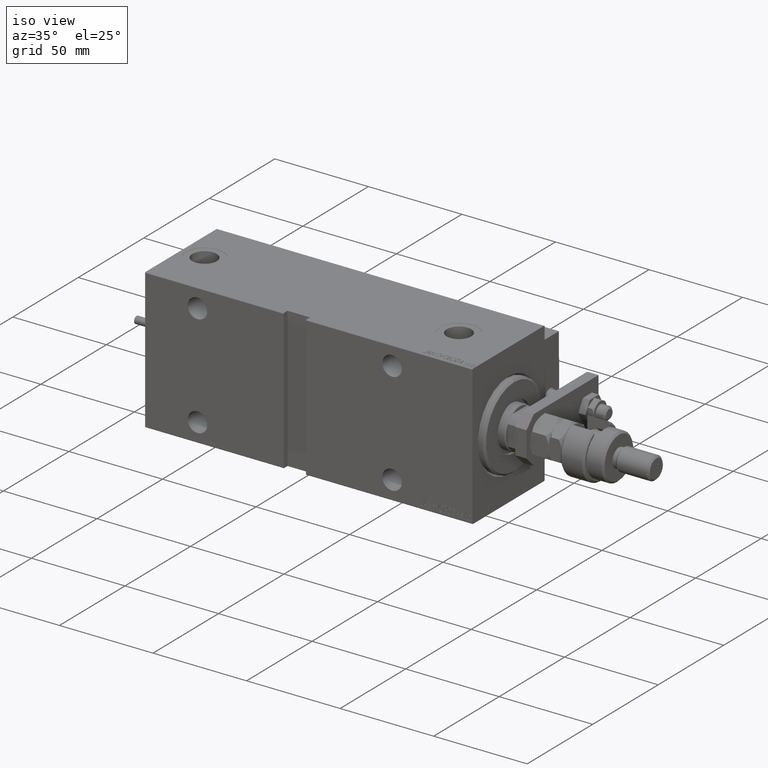
[diagram: clean part render]
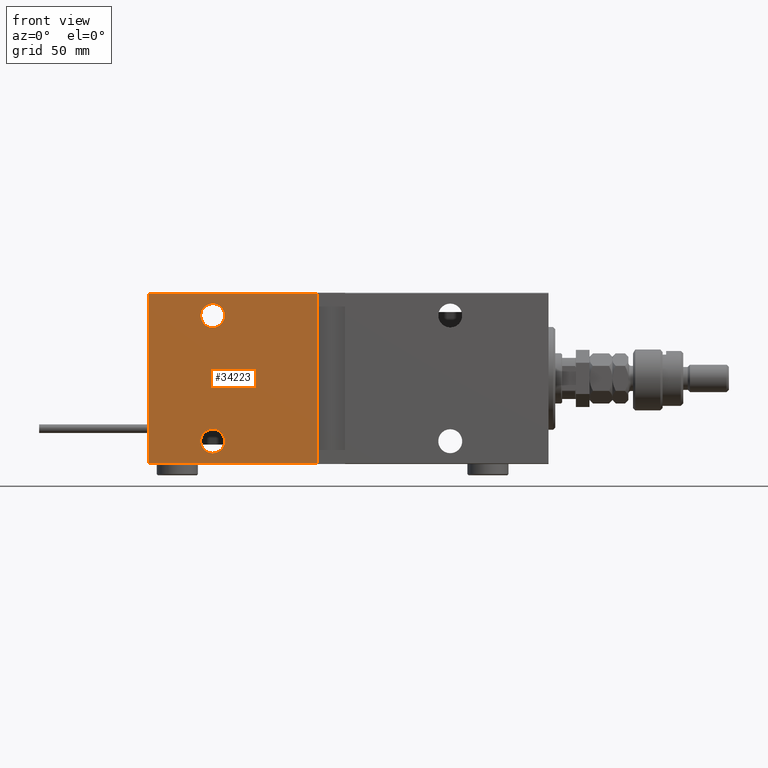
[diagram: tour spotlight — one face highlighted and labeled with its STEP entity id]
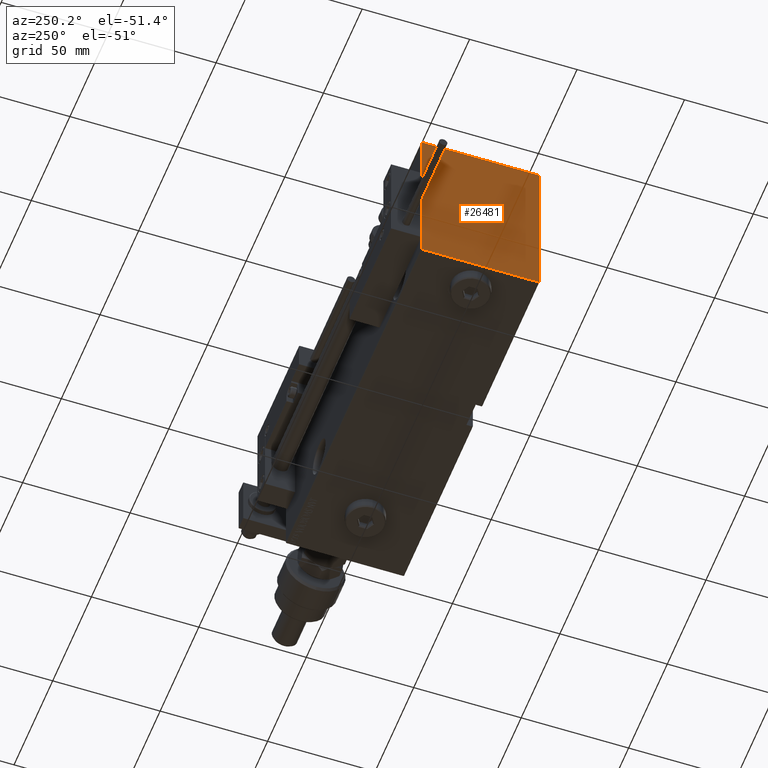
[diagram: tour spotlight — one face highlighted and labeled with its STEP entity id]
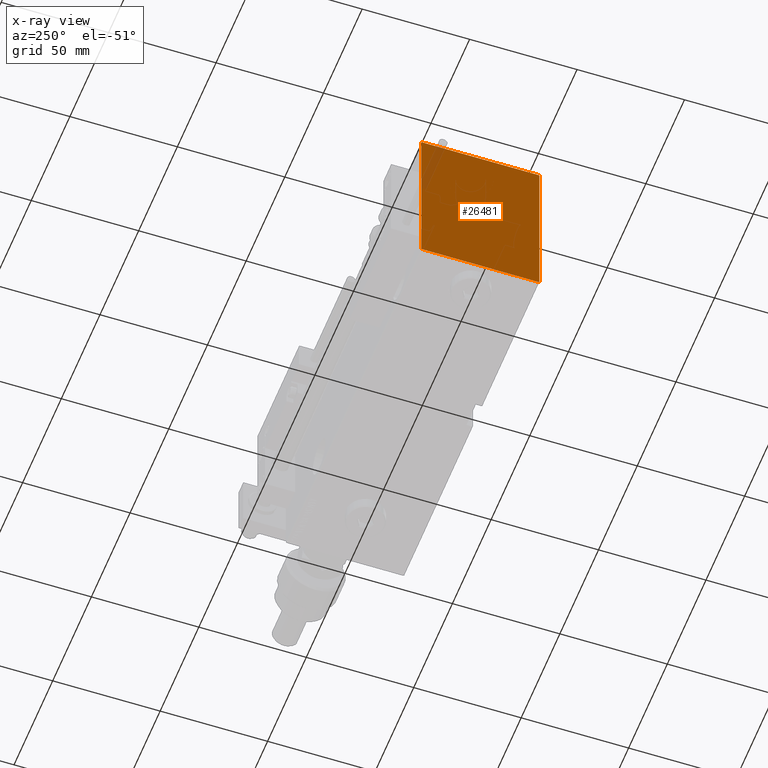
[diagram: x-ray of the same camera — body ghosted, this tour face saturated]
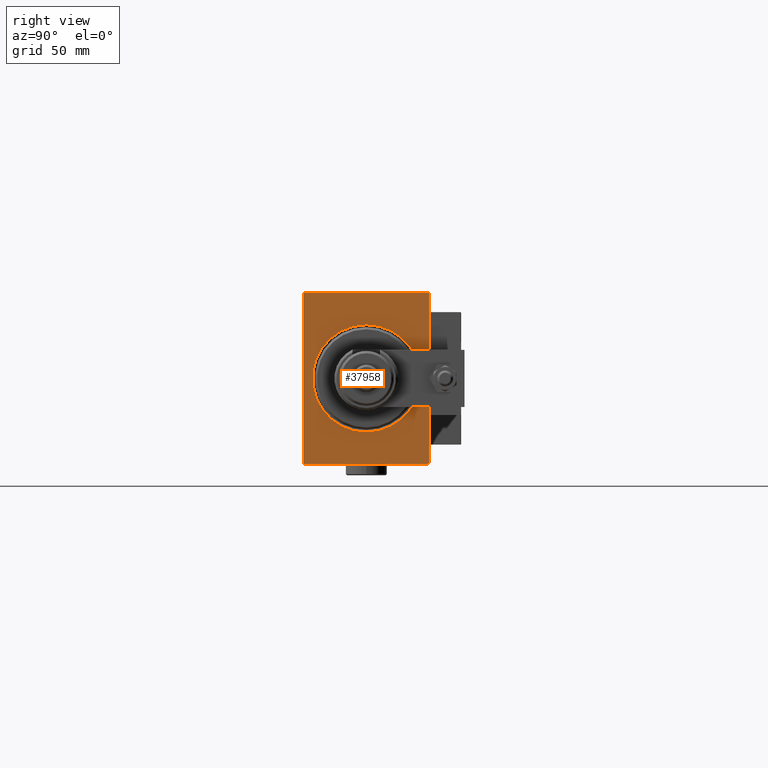
[diagram: tour spotlight — one face highlighted and labeled with its STEP entity id]
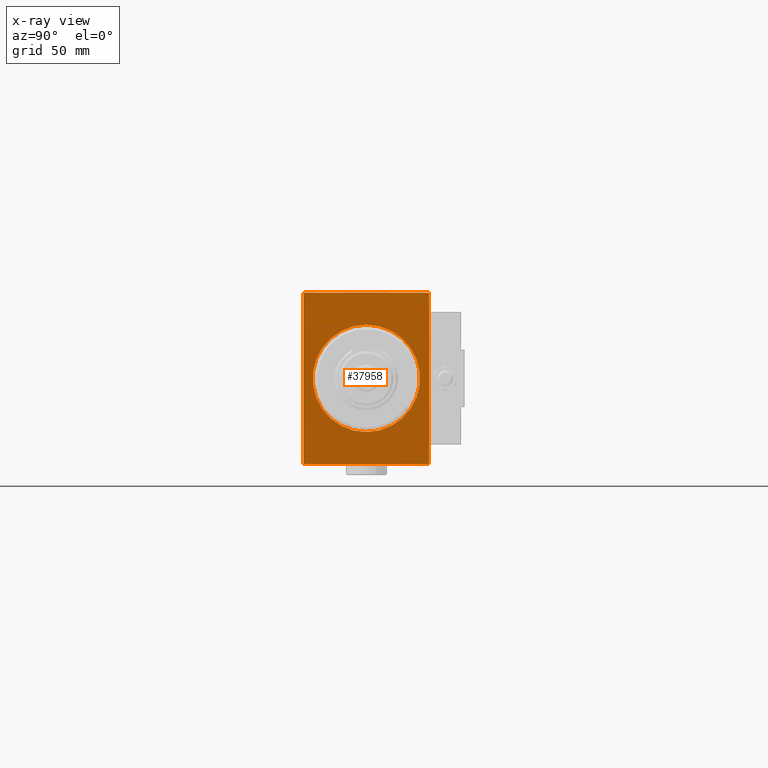
[diagram: x-ray of the same camera — body ghosted, this tour face saturated]
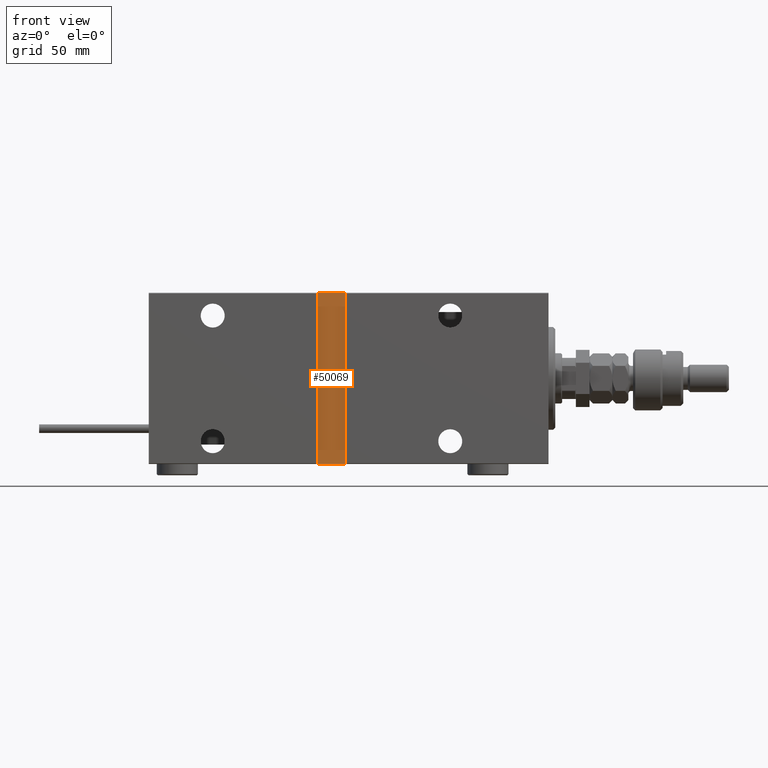
[diagram: tour spotlight — one face highlighted and labeled with its STEP entity id]
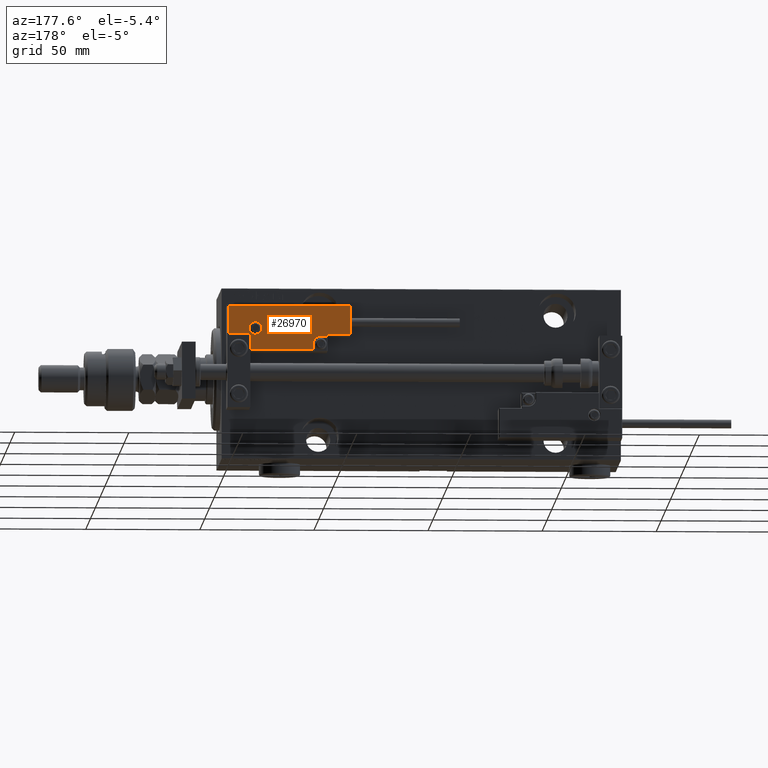
[diagram: tour spotlight — one face highlighted and labeled with its STEP entity id]
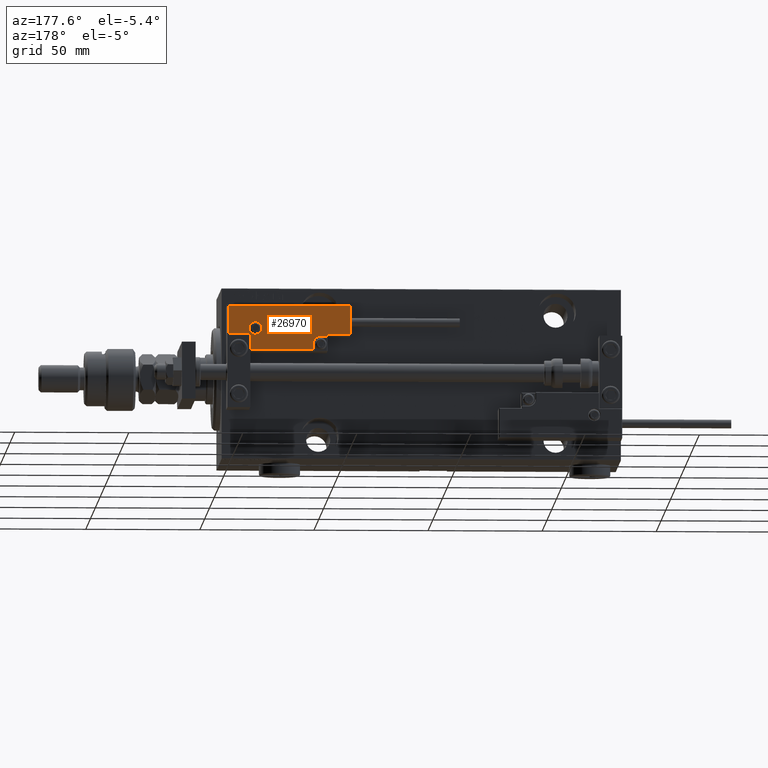
[diagram: tour spotlight — one face highlighted and labeled with its STEP entity id]
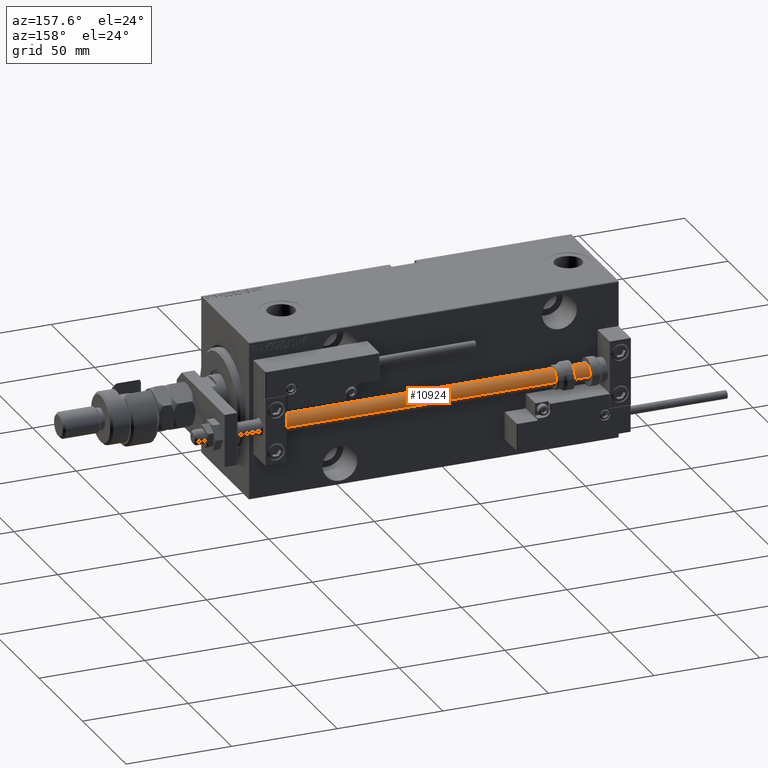
[diagram: tour spotlight — one face highlighted and labeled with its STEP entity id]
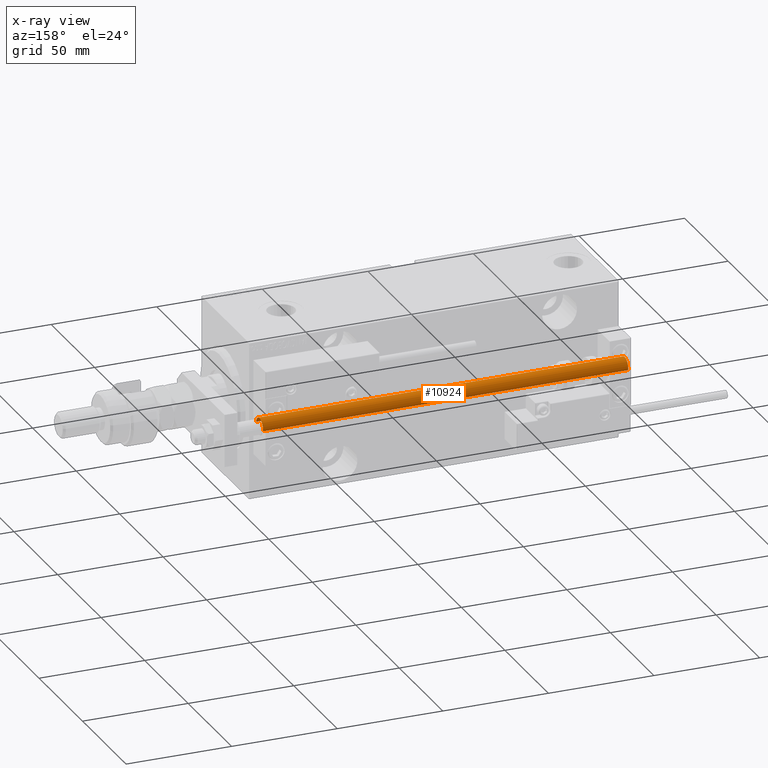
[diagram: x-ray of the same camera — body ghosted, this tour face saturated]
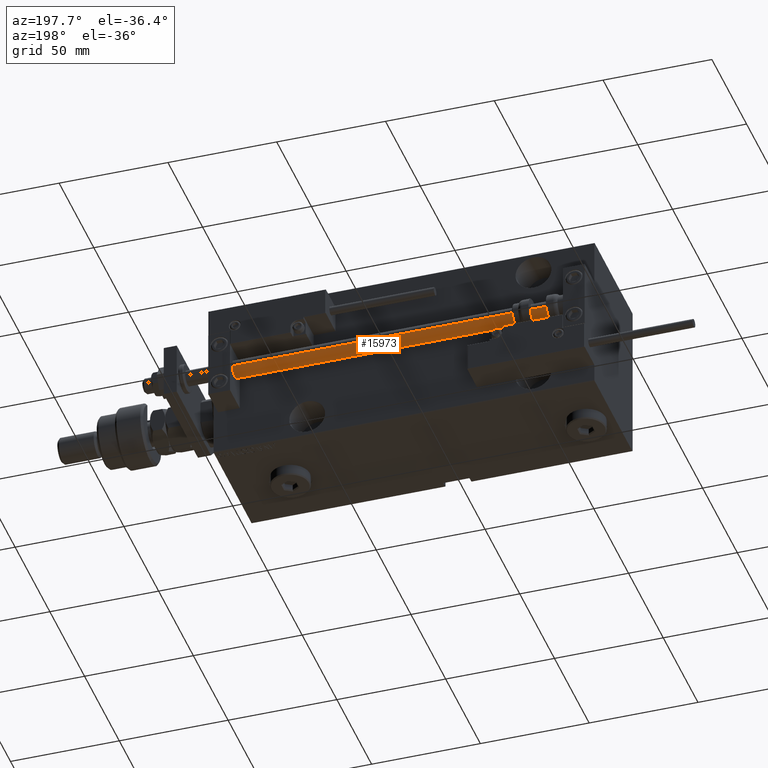
[diagram: tour spotlight — one face highlighted and labeled with its STEP entity id]
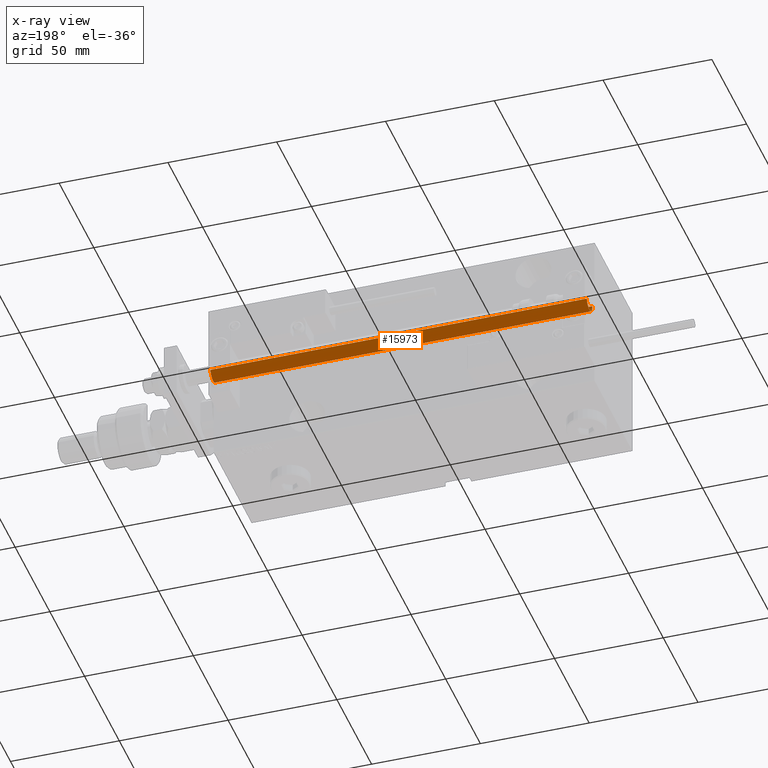
[diagram: x-ray of the same camera — body ghosted, this tour face saturated]
A machine part: a face-by-face anatomy tour. The part has 1431 B-rep faces; the first image is the clean iso view, then the 8 largest visible faces are spotlighted one at a time (largest first), each with its STEP entity span.

Face 1 — front view, entity #34223. In plain terms, the highlighted planar face has unit normal (-0, 1, -0).
Definition (entity closure, byte-faithful):
#80 = DIRECTION ( 'NONE',  ( 1.850371707708591851E-16, 9.251858538542959255E-17, -1.000000000000000000 ) ) ;
#308 = VERTEX_POINT ( 'NONE', #36185 ) ;
#686 = CARTESIAN_POINT ( 'NONE',  ( 100.9999999999999716, 27.50000000000000355, -37.20000000000003837 ) ) ;
#813 = EDGE_CURVE ( 'NONE', #23560, #28124, #19154, .T. ) ;
#1255 = CARTESIAN_POINT ( 'NONE',  ( 147.0000000000000000, 27.49999999999999645, 27.50000000000000000 ) ) ;
#1452 = DIRECTION ( 'NONE',  ( 0.000000000000000000, 0.000000000000000000, -1.000000000000000000 ) ) ;
#1621 = ORIENTED_EDGE ( 'NONE', *, *, #21572, .T. ) ;
#1869 = EDGE_LOOP ( 'NONE', ( #8675, #1621 ) ) ;
#2173 = CARTESIAN_POINT ( 'NONE',  ( 175.0000000000000000, 27.49999999999999645, 37.20000000000006679 ) ) ;
#2440 = DIRECTION ( 'NONE',  ( 0.000000000000000000, -1.000000000000000000, -9.251858538542970348E-17 ) ) ;
#2970 = LINE ( 'NONE', #33026, #51856 ) ;
#3123 = DIRECTION ( 'NONE',  ( 0.000000000000000000, 0.000000000000000000, -1.000000000000000000 ) ) ;
#3921 = AXIS2_PLACEMENT_3D ( 'NONE', #27599, #2440, #30899 ) ;
#4529 = CIRCLE ( 'NONE', #52665, 5.250000000000004441 ) ;
#4703 = ORIENTED_EDGE ( 'NONE', *, *, #44559, .T. ) ;
#5151 = EDGE_CURVE ( 'NONE', #308, #21426, #42210, .T. ) ;
#5358 = DIRECTION ( 'NONE',  ( 0.000000000000000000, 0.000000000000000000, -1.000000000000000000 ) ) ;
#5478 = CARTESIAN_POINT ( 'NONE',  ( 147.0000000000000000, 27.49999999999999645, 22.24999999999999645 ) ) ;
#5559 = DIRECTION ( 'NONE',  ( 0.000000000000000000, -1.000000000000000000, -9.251858538542970348E-17 ) ) ;
#6216 = CIRCLE ( 'NONE', #14963, 5.250000000000000888 ) ;
#6761 = VECTOR ( 'NONE', #49193, 1000.000000000000000 ) ;
#8675 = ORIENTED_EDGE ( 'NONE', *, *, #22258, .T. ) ;
#8853 = DIRECTION ( 'NONE',  ( -1.000000000000000000, 0.000000000000000000, 0.000000000000000000 ) ) ;
#10662 = PLANE ( 'NONE',  #3921 ) ;
#11047 = DIRECTION ( 'NONE',  ( 0.000000000000000000, 0.000000000000000000, -1.000000000000000000 ) ) ;
#12396 = AXIS2_PLACEMENT_3D ( 'NONE', #36220, #15693, #11047 ) ;
#12406 = CARTESIAN_POINT ( 'NONE',  ( 175.0000000000000000, 27.50000000000000355, -37.20000000000003837 ) ) ;
#14963 = AXIS2_PLACEMENT_3D ( 'NONE', #26348, #5559, #1452 ) ;
#15693 = DIRECTION ( 'NONE',  ( 0.000000000000000000, -1.000000000000000000, -9.251858538542970348E-17 ) ) ;
#16247 = ORIENTED_EDGE ( 'NONE', *, *, #32163, .T. ) ;
#17941 = DIRECTION ( 'NONE',  ( 0.000000000000000000, -1.000000000000000000, -9.251858538542970348E-17 ) ) ;
#18763 = EDGE_LOOP ( 'NONE', ( #24793, #4703, #51286, #16247 ) ) ;
#19154 = LINE ( 'NONE', #53292, #6761 ) ;
#20703 = CARTESIAN_POINT ( 'NONE',  ( 146.9999999999999716, 27.50000000000000355, -22.25000000000000355 ) ) ;
#21426 = VERTEX_POINT ( 'NONE', #686 ) ;
#21572 = EDGE_CURVE ( 'NONE', #51560, #46874, #49870, .T. ) ;
#22258 = EDGE_CURVE ( 'NONE', #46874, #51560, #6216, .T. ) ;
#23246 = VERTEX_POINT ( 'NONE', #48274 ) ;
#23560 = VERTEX_POINT ( 'NONE', #49479 ) ;
#24530 = EDGE_CURVE ( 'NONE', #23246, #30312, #29855, .T. ) ;
#24793 = ORIENTED_EDGE ( 'NONE', *, *, #813, .F. ) ;
#25468 = VECTOR ( 'NONE', #8853, 1000.000000000000000 ) ;
#26348 = CARTESIAN_POINT ( 'NONE',  ( 146.9999999999999716, 27.50000000000000355, -27.50000000000000711 ) ) ;
#27186 = AXIS2_PLACEMENT_3D ( 'NONE', #46042, #45507, #3123 ) ;
#27599 = CARTESIAN_POINT ( 'NONE',  ( 175.0000000000000000, 27.50000000000000355, -37.50000000000000711 ) ) ;
#28124 = VERTEX_POINT ( 'NONE', #2173 ) ;
#29855 = CIRCLE ( 'NONE', #12396, 5.250000000000004441 ) ;
#30312 = VERTEX_POINT ( 'NONE', #5478 ) ;
#30899 = DIRECTION ( 'NONE',  ( 0.000000000000000000, 9.251858538542970348E-17, -1.000000000000000000 ) ) ;
#32163 = EDGE_CURVE ( 'NONE', #308, #28124, #2970, .T. ) ;
#32501 = CARTESIAN_POINT ( 'NONE',  ( 146.9999999999999716, 27.50000000000000355, -32.75000000000000711 ) ) ;
#33026 = CARTESIAN_POINT ( 'NONE',  ( 175.0000000000000000, 27.49999999999999645, 37.20000000000006679 ) ) ;
#33200 = LINE ( 'NONE', #12406, #25468 ) ;
#33978 = ORIENTED_EDGE ( 'NONE', *, *, #49178, .T. ) ;
#34223 = ADVANCED_FACE ( 'NONE', ( #40197, #35014, #48104 ), #10662, .F. ) ;
#35014 = FACE_BOUND ( 'NONE', #42911, .T. ) ;
#35263 = ORIENTED_EDGE ( 'NONE', *, *, #24530, .T. ) ;
#36084 = DIRECTION ( 'NONE',  ( 1.000000000000000000, 0.000000000000000000, 0.000000000000000000 ) ) ;
#36185 = CARTESIAN_POINT ( 'NONE',  ( 100.9999999999999716, 27.49999999999999645, 37.20000000000007390 ) ) ;
#36220 = CARTESIAN_POINT ( 'NONE',  ( 147.0000000000000000, 27.49999999999999645, 27.50000000000000000 ) ) ;
#39085 = VECTOR ( 'NONE', #80, 1000.000000000000000 ) ;
#40197 = FACE_BOUND ( 'NONE', #1869, .T. ) ;
#42210 = LINE ( 'NONE', #45768, #39085 ) ;
#42911 = EDGE_LOOP ( 'NONE', ( #35263, #33978 ) ) ;
#44559 = EDGE_CURVE ( 'NONE', #23560, #21426, #33200, .T. ) ;
#45507 = DIRECTION ( 'NONE',  ( 0.000000000000000000, -1.000000000000000000, -9.251858538542970348E-17 ) ) ;
#45768 = CARTESIAN_POINT ( 'NONE',  ( 100.9999999999999716, 27.50000000000000355, -37.50000000000008527 ) ) ;
#46042 = CARTESIAN_POINT ( 'NONE',  ( 146.9999999999999716, 27.50000000000000355, -27.50000000000000711 ) ) ;
#46874 = VERTEX_POINT ( 'NONE', #20703 ) ;
#48104 = FACE_OUTER_BOUND ( 'NONE', #18763, .T. ) ;
#48274 = CARTESIAN_POINT ( 'NONE',  ( 147.0000000000000000, 27.49999999999999645, 32.75000000000000000 ) ) ;
#49178 = EDGE_CURVE ( 'NONE', #30312, #23246, #4529, .T. ) ;
#49193 = DIRECTION ( 'NONE',  ( 0.000000000000000000, -9.251858538542970348E-17, 1.000000000000000000 ) ) ;
#49479 = CARTESIAN_POINT ( 'NONE',  ( 175.0000000000000000, 27.50000000000000355, -37.20000000000003837 ) ) ;
#49870 = CIRCLE ( 'NONE', #27186, 5.250000000000000888 ) ;
#51286 = ORIENTED_EDGE ( 'NONE', *, *, #5151, .F. ) ;
#51560 = VERTEX_POINT ( 'NONE', #32501 ) ;
#51856 = VECTOR ( 'NONE', #36084, 1000.000000000000000 ) ;
#52665 = AXIS2_PLACEMENT_3D ( 'NONE', #1255, #17941, #5358 ) ;
#53292 = CARTESIAN_POINT ( 'NONE',  ( 175.0000000000000000, 27.50000000000000355, -37.50000000000000711 ) ) ;

Face 2 — auxiliary view, entity #26481. An x-ray twin of the same camera follows (body ghosted, this face saturated) — the face is partly hidden behind the body. In plain terms, the highlighted planar face has unit normal (-1, 0, 0).
Definition (entity closure, byte-faithful):
#558 = CARTESIAN_POINT ( 'NONE',  ( 175.0000000000000000, 27.20000000000005613, 37.50000000000000711 ) ) ;
#749 = EDGE_CURVE ( 'NONE', #3616, #29125, #47322, .T. ) ;
#765 = DIRECTION ( 'NONE',  ( 0.000000000000000000, -0.7071067811865843211, -0.7071067811865108244 ) ) ;
#813 = EDGE_CURVE ( 'NONE', #23560, #28124, #19154, .T. ) ;
#1155 = CARTESIAN_POINT ( 'NONE',  ( 175.0000000000000000, 27.20000000000003837, -37.50000000000000711 ) ) ;
#1222 = CARTESIAN_POINT ( 'NONE',  ( 175.0000000000000000, -27.50000000000000000, 37.20000000000005258 ) ) ;
#1934 = DIRECTION ( 'NONE',  ( 0.000000000000000000, 1.000000000000000000, 0.000000000000000000 ) ) ;
#2173 = CARTESIAN_POINT ( 'NONE',  ( 175.0000000000000000, 27.49999999999999645, 37.20000000000006679 ) ) ;
#3616 = VERTEX_POINT ( 'NONE', #25723 ) ;
#4180 = LINE ( 'NONE', #13182, #14704 ) ;
#5026 = VECTOR ( 'NONE', #43676, 1000.000000000000000 ) ;
#5533 = VERTEX_POINT ( 'NONE', #558 ) ;
#6044 = CARTESIAN_POINT ( 'NONE',  ( 175.0000000000000000, -27.50000000000000000, -37.50000000000000711 ) ) ;
#6531 = DIRECTION ( 'NONE',  ( 1.000000000000000000, 0.000000000000000000, 0.000000000000000000 ) ) ;
#6761 = VECTOR ( 'NONE', #49193, 1000.000000000000000 ) ;
#8141 = ORIENTED_EDGE ( 'NONE', *, *, #34445, .T. ) ;
#8701 = DIRECTION ( 'NONE',  ( -0.000000000000000000, 0.7071067811865149322, -0.7071067811865802133 ) ) ;
#10425 = ORIENTED_EDGE ( 'NONE', *, *, #12694, .T. ) ;
#10631 = LINE ( 'NONE', #36065, #21115 ) ;
#11183 = EDGE_CURVE ( 'NONE', #29125, #23560, #39836, .T. ) ;
#11772 = VECTOR ( 'NONE', #8701, 999.9999999999998863 ) ;
#12694 = EDGE_CURVE ( 'NONE', #28124, #5533, #4180, .T. ) ;
#13182 = CARTESIAN_POINT ( 'NONE',  ( 175.0000000000000000, 32.35000000000002984, 32.35000000000002984 ) ) ;
#14704 = VECTOR ( 'NONE', #53923, 1000.000000000000114 ) ;
#16537 = ORIENTED_EDGE ( 'NONE', *, *, #45890, .T. ) ;
#17768 = EDGE_CURVE ( 'NONE', #48819, #20547, #33602, .T. ) ;
#18290 = FACE_OUTER_BOUND ( 'NONE', #23806, .T. ) ;
#19098 = DIRECTION ( 'NONE',  ( 0.000000000000000000, 0.000000000000000000, -1.000000000000000000 ) ) ;
#19154 = LINE ( 'NONE', #53292, #6761 ) ;
#20547 = VERTEX_POINT ( 'NONE', #1222 ) ;
#21115 = VECTOR ( 'NONE', #19098, 1000.000000000000000 ) ;
#21824 = ORIENTED_EDGE ( 'NONE', *, *, #17768, .T. ) ;
#23198 = DIRECTION ( 'NONE',  ( 0.000000000000000000, 0.000000000000000000, -1.000000000000000000 ) ) ;
#23560 = VERTEX_POINT ( 'NONE', #49479 ) ;
#23806 = EDGE_LOOP ( 'NONE', ( #32353, #53454, #24277, #10425, #53509, #21824, #16537, #8141 ) ) ;
#24277 = ORIENTED_EDGE ( 'NONE', *, *, #813, .T. ) ;
#25723 = CARTESIAN_POINT ( 'NONE',  ( 175.0000000000000000, -27.20000000000003482, -37.50000000000000711 ) ) ;
#26481 = ADVANCED_FACE ( 'NONE', ( #18290 ), #27310, .T. ) ;
#27310 = PLANE ( 'NONE',  #35221 ) ;
#28124 = VERTEX_POINT ( 'NONE', #2173 ) ;
#29125 = VERTEX_POINT ( 'NONE', #1155 ) ;
#30207 = CARTESIAN_POINT ( 'NONE',  ( 175.0000000000000000, -27.50000000000000000, -37.20000000000000995 ) ) ;
#32353 = ORIENTED_EDGE ( 'NONE', *, *, #749, .T. ) ;
#33602 = LINE ( 'NONE', #46447, #39261 ) ;
#34445 = EDGE_CURVE ( 'NONE', #39739, #3616, #52063, .T. ) ;
#35221 = AXIS2_PLACEMENT_3D ( 'NONE', #43999, #6531, #23198 ) ;
#35456 = CARTESIAN_POINT ( 'NONE',  ( 175.0000000000000000, 32.35000000000018616, -32.34999999999980247 ) ) ;
#36065 = CARTESIAN_POINT ( 'NONE',  ( 175.0000000000000000, -27.50000000000000000, 37.49999999999999289 ) ) ;
#37967 = CARTESIAN_POINT ( 'NONE',  ( 175.0000000000000000, -32.35000000000127329, -32.34999999999828191 ) ) ;
#39261 = VECTOR ( 'NONE', #765, 1000.000000000000000 ) ;
#39739 = VERTEX_POINT ( 'NONE', #30207 ) ;
#39836 = LINE ( 'NONE', #35456, #5026 ) ;
#39952 = VECTOR ( 'NONE', #1934, 1000.000000000000000 ) ;
#40649 = DIRECTION ( 'NONE',  ( 0.000000000000000000, -1.000000000000000000, -2.523234146875355998E-16 ) ) ;
#41320 = VECTOR ( 'NONE', #40649, 1000.000000000000000 ) ;
#42045 = CARTESIAN_POINT ( 'NONE',  ( 175.0000000000000000, -27.20000000000003126, 37.49999999999999289 ) ) ;
#43676 = DIRECTION ( 'NONE',  ( -0.000000000000000000, 0.7071067811865434649, 0.7071067811865516806 ) ) ;
#43999 = CARTESIAN_POINT ( 'NONE',  ( 175.0000000000000000, 0.000000000000000000, 0.000000000000000000 ) ) ;
#45890 = EDGE_CURVE ( 'NONE', #20547, #39739, #10631, .T. ) ;
#46447 = CARTESIAN_POINT ( 'NONE',  ( 175.0000000000000000, -32.34999999999859455, 32.35000000000196252 ) ) ;
#47322 = LINE ( 'NONE', #6044, #39952 ) ;
#48081 = EDGE_CURVE ( 'NONE', #5533, #48819, #48295, .T. ) ;
#48295 = LINE ( 'NONE', #52663, #41320 ) ;
#48819 = VERTEX_POINT ( 'NONE', #42045 ) ;
#49193 = DIRECTION ( 'NONE',  ( 0.000000000000000000, -9.251858538542970348E-17, 1.000000000000000000 ) ) ;
#49479 = CARTESIAN_POINT ( 'NONE',  ( 175.0000000000000000, 27.50000000000000355, -37.20000000000003837 ) ) ;
#52063 = LINE ( 'NONE', #37967, #11772 ) ;
#52663 = CARTESIAN_POINT ( 'NONE',  ( 175.0000000000000000, 27.49999999999999645, 37.50000000000000711 ) ) ;
#53292 = CARTESIAN_POINT ( 'NONE',  ( 175.0000000000000000, 27.50000000000000355, -37.50000000000000711 ) ) ;
#53454 = ORIENTED_EDGE ( 'NONE', *, *, #11183, .T. ) ;
#53509 = ORIENTED_EDGE ( 'NONE', *, *, #48081, .T. ) ;
#53923 = DIRECTION ( 'NONE',  ( -0.000000000000000000, -0.7071067811865474617, 0.7071067811865474617 ) ) ;

Face 3 — right view, entity #37958. An x-ray twin of the same camera follows (body ghosted, this face saturated) — the face is partly hidden behind the body. In plain terms, the highlighted planar face has unit normal (-1, 0, 0).
Definition (entity closure, byte-faithful):
#1514 = DIRECTION ( 'NONE',  ( -0.000000000000000000, -0.7071067811865149322, 0.7071067811865802133 ) ) ;
#2061 = CARTESIAN_POINT ( 'NONE',  ( 0.000000000000000000, -27.20000000000003482, -37.50000000000000711 ) ) ;
#2575 = DIRECTION ( 'NONE',  ( 0.000000000000000000, 0.000000000000000000, -1.000000000000000000 ) ) ;
#2689 = LINE ( 'NONE', #7602, #16401 ) ;
#2914 = EDGE_CURVE ( 'NONE', #37683, #4765, #21633, .T. ) ;
#3332 = CARTESIAN_POINT ( 'NONE',  ( 0.000000000000000000, -27.50000000000000000, 37.20000000000005258 ) ) ;
#3816 = ORIENTED_EDGE ( 'NONE', *, *, #12571, .T. ) ;
#4765 = VERTEX_POINT ( 'NONE', #38582 ) ;
#4822 = ORIENTED_EDGE ( 'NONE', *, *, #2914, .T. ) ;
#5238 = CARTESIAN_POINT ( 'NONE',  ( 0.000000000000000000, 27.20000000000005613, 37.50000000000000711 ) ) ;
#5580 = DIRECTION ( 'NONE',  ( 0.000000000000000000, 0.000000000000000000, -1.000000000000000000 ) ) ;
#5628 = ORIENTED_EDGE ( 'NONE', *, *, #24834, .T. ) ;
#5745 = LINE ( 'NONE', #22421, #12148 ) ;
#7579 = EDGE_CURVE ( 'NONE', #33075, #18016, #35556, .T. ) ;
#7602 = CARTESIAN_POINT ( 'NONE',  ( 0.000000000000000000, -27.50000000000000000, 37.49999999999999289 ) ) ;
#10512 = VERTEX_POINT ( 'NONE', #30512 ) ;
#10987 = EDGE_CURVE ( 'NONE', #32084, #10512, #2689, .T. ) ;
#10990 = DIRECTION ( 'NONE',  ( -0.000000000000000000, 0.7071067811865474617, -0.7071067811865474617 ) ) ;
#11324 = CARTESIAN_POINT ( 'NONE',  ( 0.000000000000000000, 0.000000000000000000, 0.000000000000000000 ) ) ;
#12148 = VECTOR ( 'NONE', #47852, 1000.000000000000000 ) ;
#12308 = DIRECTION ( 'NONE',  ( 0.000000000000000000, -9.251858538542970348E-17, 1.000000000000000000 ) ) ;
#12571 = EDGE_CURVE ( 'NONE', #4765, #37683, #38283, .T. ) ;
#13571 = ORIENTED_EDGE ( 'NONE', *, *, #49305, .F. ) ;
#14715 = VECTOR ( 'NONE', #12308, 1000.000000000000000 ) ;
#14775 = CARTESIAN_POINT ( 'NONE',  ( 0.000000000000000000, 27.50000000000000355, -37.20000000000003837 ) ) ;
#15118 = LINE ( 'NONE', #3332, #16771 ) ;
#16125 = VERTEX_POINT ( 'NONE', #34253 ) ;
#16324 = ORIENTED_EDGE ( 'NONE', *, *, #10987, .F. ) ;
#16401 = VECTOR ( 'NONE', #19369, 1000.000000000000000 ) ;
#16771 = VECTOR ( 'NONE', #24387, 1000.000000000000000 ) ;
#17658 = ORIENTED_EDGE ( 'NONE', *, *, #7579, .T. ) ;
#18016 = VERTEX_POINT ( 'NONE', #33731 ) ;
#19369 = DIRECTION ( 'NONE',  ( 0.000000000000000000, 0.000000000000000000, -1.000000000000000000 ) ) ;
#19986 = PLANE ( 'NONE',  #29539 ) ;
#21633 = CIRCLE ( 'NONE', #26024, 23.49999999999996092 ) ;
#22421 = CARTESIAN_POINT ( 'NONE',  ( 0.000000000000000000, 27.49999999999999645, 37.50000000000000711 ) ) ;
#22751 = EDGE_LOOP ( 'NONE', ( #30314, #52049, #30370, #17658, #13571, #39718, #16324, #5628 ) ) ;
#23117 = LINE ( 'NONE', #2061, #24787 ) ;
#23634 = DIRECTION ( 'NONE',  ( 1.000000000000000000, 0.000000000000000000, 0.000000000000000000 ) ) ;
#23831 = CARTESIAN_POINT ( 'NONE',  ( 0.000000000000000000, 0.000000000000000000, 0.000000000000000000 ) ) ;
#24206 = DIRECTION ( 'NONE',  ( 0.000000000000000000, 1.000000000000000000, 0.000000000000000000 ) ) ;
#24289 = EDGE_LOOP ( 'NONE', ( #3816, #4822 ) ) ;
#24387 = DIRECTION ( 'NONE',  ( -0.000000000000000000, 0.7071067811865843211, 0.7071067811865108244 ) ) ;
#24787 = VECTOR ( 'NONE', #1514, 999.9999999999998863 ) ;
#24834 = EDGE_CURVE ( 'NONE', #32084, #47743, #15118, .T. ) ;
#25540 = VECTOR ( 'NONE', #24206, 1000.000000000000000 ) ;
#26024 = AXIS2_PLACEMENT_3D ( 'NONE', #45292, #41454, #40659 ) ;
#26923 = AXIS2_PLACEMENT_3D ( 'NONE', #11324, #23634, #2575 ) ;
#27658 = FACE_BOUND ( 'NONE', #24289, .T. ) ;
#28310 = LINE ( 'NONE', #44996, #25540 ) ;
#29539 = AXIS2_PLACEMENT_3D ( 'NONE', #23831, #40255, #5580 ) ;
#30314 = ORIENTED_EDGE ( 'NONE', *, *, #40139, .F. ) ;
#30370 = ORIENTED_EDGE ( 'NONE', *, *, #38029, .F. ) ;
#30512 = CARTESIAN_POINT ( 'NONE',  ( 0.000000000000000000, -27.50000000000000000, -37.20000000000000995 ) ) ;
#32071 = VECTOR ( 'NONE', #32764, 1000.000000000000000 ) ;
#32084 = VERTEX_POINT ( 'NONE', #48891 ) ;
#32725 = VECTOR ( 'NONE', #10990, 1000.000000000000114 ) ;
#32764 = DIRECTION ( 'NONE',  ( 0.000000000000000000, -0.7071067811865434649, -0.7071067811865516806 ) ) ;
#33075 = VERTEX_POINT ( 'NONE', #43411 ) ;
#33731 = CARTESIAN_POINT ( 'NONE',  ( 0.000000000000000000, 27.20000000000003837, -37.50000000000000711 ) ) ;
#33858 = EDGE_CURVE ( 'NONE', #49881, #16125, #39455, .T. ) ;
#34253 = CARTESIAN_POINT ( 'NONE',  ( 0.000000000000000000, 27.49999999999999645, 37.20000000000006679 ) ) ;
#35345 = CARTESIAN_POINT ( 'NONE',  ( 0.000000000000000000, 27.20000000000005613, 37.50000000000000711 ) ) ;
#35460 = CARTESIAN_POINT ( 'NONE',  ( 0.000000000000000000, -27.20000000000003482, -37.50000000000000711 ) ) ;
#35556 = LINE ( 'NONE', #14775, #32071 ) ;
#37213 = LINE ( 'NONE', #42127, #14715 ) ;
#37683 = VERTEX_POINT ( 'NONE', #53448 ) ;
#37958 = ADVANCED_FACE ( 'NONE', ( #27658, #47422 ), #19986, .F. ) ;
#38029 = EDGE_CURVE ( 'NONE', #33075, #16125, #37213, .T. ) ;
#38283 = CIRCLE ( 'NONE', #26923, 23.49999999999996092 ) ;
#38582 = CARTESIAN_POINT ( 'NONE',  ( 0.000000000000000000, 0.000000000000000000, 23.49999999999996092 ) ) ;
#39455 = LINE ( 'NONE', #35345, #32725 ) ;
#39718 = ORIENTED_EDGE ( 'NONE', *, *, #53973, .T. ) ;
#40139 = EDGE_CURVE ( 'NONE', #49881, #47743, #5745, .T. ) ;
#40255 = DIRECTION ( 'NONE',  ( 1.000000000000000000, 0.000000000000000000, 0.000000000000000000 ) ) ;
#40659 = DIRECTION ( 'NONE',  ( 0.000000000000000000, 0.000000000000000000, -1.000000000000000000 ) ) ;
#41454 = DIRECTION ( 'NONE',  ( 1.000000000000000000, 0.000000000000000000, 0.000000000000000000 ) ) ;
#42127 = CARTESIAN_POINT ( 'NONE',  ( 0.000000000000000000, 27.50000000000000355, -37.50000000000000711 ) ) ;
#43411 = CARTESIAN_POINT ( 'NONE',  ( 0.000000000000000000, 27.50000000000000355, -37.20000000000003837 ) ) ;
#44996 = CARTESIAN_POINT ( 'NONE',  ( 0.000000000000000000, -27.50000000000000000, -37.50000000000000711 ) ) ;
#45292 = CARTESIAN_POINT ( 'NONE',  ( 0.000000000000000000, 0.000000000000000000, 0.000000000000000000 ) ) ;
#47009 = VERTEX_POINT ( 'NONE', #35460 ) ;
#47422 = FACE_OUTER_BOUND ( 'NONE', #22751, .T. ) ;
#47743 = VERTEX_POINT ( 'NONE', #52986 ) ;
#47852 = DIRECTION ( 'NONE',  ( 0.000000000000000000, -1.000000000000000000, -2.523234146875355998E-16 ) ) ;
#48891 = CARTESIAN_POINT ( 'NONE',  ( 0.000000000000000000, -27.50000000000000000, 37.20000000000005258 ) ) ;
#49305 = EDGE_CURVE ( 'NONE', #47009, #18016, #28310, .T. ) ;
#49881 = VERTEX_POINT ( 'NONE', #5238 ) ;
#52049 = ORIENTED_EDGE ( 'NONE', *, *, #33858, .T. ) ;
#52986 = CARTESIAN_POINT ( 'NONE',  ( 0.000000000000000000, -27.20000000000003126, 37.49999999999999289 ) ) ;
#53448 = CARTESIAN_POINT ( 'NONE',  ( 0.000000000000000000, 2.877919977996275587E-15, -23.49999999999996092 ) ) ;
#53973 = EDGE_CURVE ( 'NONE', #47009, #10512, #23117, .T. ) ;

Face 4 — front view, entity #50069. In plain terms, the highlighted planar face has unit normal (-0, 1, -0).
Definition (entity closure, byte-faithful):
#2325 = VECTOR ( 'NONE', #16704, 1000.000000000000000 ) ;
#2687 = ORIENTED_EDGE ( 'NONE', *, *, #3688, .T. ) ;
#2761 = DIRECTION ( 'NONE',  ( 0.000000000000000000, -1.000000000000000000, -9.251858538542959255E-17 ) ) ;
#3688 = EDGE_CURVE ( 'NONE', #24333, #50842, #37781, .T. ) ;
#4668 = EDGE_LOOP ( 'NONE', ( #2687, #51558, #34446, #50872 ) ) ;
#6871 = LINE ( 'NONE', #24337, #42725 ) ;
#10689 = VECTOR ( 'NONE', #12757, 1000.000000000000000 ) ;
#12757 = DIRECTION ( 'NONE',  ( 1.850371707708591851E-16, 9.251858538542959255E-17, -1.000000000000000000 ) ) ;
#13173 = DIRECTION ( 'NONE',  ( -1.000000000000000000, 0.000000000000000000, 0.000000000000000000 ) ) ;
#14251 = EDGE_CURVE ( 'NONE', #50842, #51908, #6871, .T. ) ;
#15500 = CARTESIAN_POINT ( 'NONE',  ( 100.9999999999999716, 24.49999999999999645, 37.50000000000000711 ) ) ;
#16704 = DIRECTION ( 'NONE',  ( 0.000000000000000000, -9.251858538542959255E-17, 1.000000000000000000 ) ) ;
#16792 = VECTOR ( 'NONE', #13173, 1000.000000000000000 ) ;
#19967 = DIRECTION ( 'NONE',  ( 1.000000000000000000, -0.000000000000000000, -0.000000000000000000 ) ) ;
#20242 = DIRECTION ( 'NONE',  ( 0.000000000000000000, 9.251858538542959255E-17, -1.000000000000000000 ) ) ;
#20690 = LINE ( 'NONE', #50221, #10689 ) ;
#20844 = LINE ( 'NONE', #37551, #16792 ) ;
#24333 = VERTEX_POINT ( 'NONE', #39248 ) ;
#24337 = CARTESIAN_POINT ( 'NONE',  ( 100.9999999999999716, 24.49999999999999645, 37.50000000000000711 ) ) ;
#25439 = VERTEX_POINT ( 'NONE', #43166 ) ;
#26034 = CARTESIAN_POINT ( 'NONE',  ( 88.99999999999997158, 24.49999999999999645, 37.50000000000000711 ) ) ;
#28188 = PLANE ( 'NONE',  #39539 ) ;
#34446 = ORIENTED_EDGE ( 'NONE', *, *, #45998, .T. ) ;
#37551 = CARTESIAN_POINT ( 'NONE',  ( 100.9999999999999716, 24.50000000000000355, -37.50000000000008527 ) ) ;
#37781 = LINE ( 'NONE', #45708, #2325 ) ;
#39248 = CARTESIAN_POINT ( 'NONE',  ( 88.99999999999997158, 24.50000000000000355, -37.50000000000008527 ) ) ;
#39539 = AXIS2_PLACEMENT_3D ( 'NONE', #41040, #2761, #20242 ) ;
#41040 = CARTESIAN_POINT ( 'NONE',  ( 0.000000000000000000, 24.50000000000000000, 2.165775976068010180E-15 ) ) ;
#42725 = VECTOR ( 'NONE', #19967, 1000.000000000000000 ) ;
#43166 = CARTESIAN_POINT ( 'NONE',  ( 100.9999999999999716, 24.50000000000000355, -37.50000000000000711 ) ) ;
#45708 = CARTESIAN_POINT ( 'NONE',  ( 88.99999999999997158, 24.50000000000000355, -37.50000000000008527 ) ) ;
#45998 = EDGE_CURVE ( 'NONE', #51908, #25439, #20690, .T. ) ;
#49853 = EDGE_CURVE ( 'NONE', #25439, #24333, #20844, .T. ) ;
#50069 = ADVANCED_FACE ( 'NONE', ( #53845 ), #28188, .F. ) ;
#50221 = CARTESIAN_POINT ( 'NONE',  ( 100.9999999999999716, 24.50000000000000355, -37.50000000000008527 ) ) ;
#50842 = VERTEX_POINT ( 'NONE', #26034 ) ;
#50872 = ORIENTED_EDGE ( 'NONE', *, *, #49853, .T. ) ;
#51558 = ORIENTED_EDGE ( 'NONE', *, *, #14251, .T. ) ;
#51908 = VERTEX_POINT ( 'NONE', #15500 ) ;
#53845 = FACE_OUTER_BOUND ( 'NONE', #4668, .T. ) ;

Face 5 — auxiliary view, entity #26970. In plain terms, the highlighted planar face has unit normal (-0, 1, 0).
Definition (entity closure, byte-faithful):
#206 = DIRECTION ( 'NONE',  ( 1.000000000000000000, 5.782411586589357639E-16, -0.000000000000000000 ) ) ;
#1174 = CARTESIAN_POINT ( 'NONE',  ( 16.69999999999999929, 6.300000000000003375, 14.00000000000000000 ) ) ;
#1189 = PLANE ( 'NONE',  #38618 ) ;
#2019 = DIRECTION ( 'NONE',  ( -0.000000000000000000, 0.000000000000000000, 1.000000000000000000 ) ) ;
#2035 = EDGE_CURVE ( 'NONE', #33357, #8772, #31372, .T. ) ;
#2076 = ORIENTED_EDGE ( 'NONE', *, *, #18767, .T. ) ;
#2808 = VECTOR ( 'NONE', #38408, 1000.000000000000000 ) ;
#3752 = DIRECTION ( 'NONE',  ( 1.000000000000000000, 0.000000000000000000, 0.000000000000000000 ) ) ;
#5514 = CARTESIAN_POINT ( 'NONE',  ( -17.59999999999994813, 9.800000000000004263, 14.00000000000000000 ) ) ;
#5529 = DIRECTION ( 'NONE',  ( 0.000000000000000000, 1.000000000000000000, -0.000000000000000000 ) ) ;
#5768 = DIRECTION ( 'NONE',  ( 0.000000000000000000, -0.000000000000000000, -1.000000000000000000 ) ) ;
#5943 = CARTESIAN_POINT ( 'NONE',  ( 27.00000000000006395, 7.300000000000007816, 14.00000000000000000 ) ) ;
#6352 = LINE ( 'NONE', #22196, #41845 ) ;
#6934 = VERTEX_POINT ( 'NONE', #28958 ) ;
#7339 = VERTEX_POINT ( 'NONE', #46917 ) ;
#7466 = VERTEX_POINT ( 'NONE', #52895 ) ;
#7477 = EDGE_CURVE ( 'NONE', #8772, #43070, #14020, .T. ) ;
#8376 = VERTEX_POINT ( 'NONE', #47582 ) ;
#8425 = CARTESIAN_POINT ( 'NONE',  ( 17.00000000000000000, 6.300000000000003375, 14.00000000000000000 ) ) ;
#8772 = VERTEX_POINT ( 'NONE', #16038 ) ;
#8964 = EDGE_CURVE ( 'NONE', #6934, #36080, #39541, .T. ) ;
#9321 = ORIENTED_EDGE ( 'NONE', *, *, #31041, .T. ) ;
#9396 = LINE ( 'NONE', #26088, #44855 ) ;
#9528 = DIRECTION ( 'NONE',  ( 9.912705577010318647E-16, 1.000000000000000000, 0.000000000000000000 ) ) ;
#10893 = ORIENTED_EDGE ( 'NONE', *, *, #19380, .T. ) ;
#12864 = CARTESIAN_POINT ( 'NONE',  ( 13.99999999999999822, 3.000000000000002665, 14.00000000000000000 ) ) ;
#12994 = AXIS2_PLACEMENT_3D ( 'NONE', #24801, #45859, #3752 ) ;
#13624 = LINE ( 'NONE', #46991, #36683 ) ;
#14020 = LINE ( 'NONE', #26599, #53857 ) ;
#14119 = EDGE_CURVE ( 'NONE', #28695, #50741, #54050, .T. ) ;
#14572 = CARTESIAN_POINT ( 'NONE',  ( -26.69999999999994600, 7.000000000000005329, 14.00000000000000000 ) ) ;
#14632 = EDGE_CURVE ( 'NONE', #50741, #28695, #40124, .T. ) ;
#15806 = ORIENTED_EDGE ( 'NONE', *, *, #8964, .T. ) ;
#16038 = CARTESIAN_POINT ( 'NONE',  ( 26.70000000000006324, 7.300000000000007816, 14.00000000000000000 ) ) ;
#16456 = AXIS2_PLACEMENT_3D ( 'NONE', #12864, #45423, #50054 ) ;
#16598 = ORIENTED_EDGE ( 'NONE', *, *, #26979, .T. ) ;
#17429 = CARTESIAN_POINT ( 'NONE',  ( 10.69999999999999929, 3.000000000000003109, 14.00000000000000000 ) ) ;
#17896 = CARTESIAN_POINT ( 'NONE',  ( 16.69999999999999929, 7.300000000000009592, 14.00000000000000000 ) ) ;
#18067 = ORIENTED_EDGE ( 'NONE', *, *, #14119, .T. ) ;
#18072 = VERTEX_POINT ( 'NONE', #1174 ) ;
#18153 = FACE_OUTER_BOUND ( 'NONE', #18981, .T. ) ;
#18183 = CARTESIAN_POINT ( 'NONE',  ( -11.99999999999994849, 9.800000000000004263, 14.00000000000000000 ) ) ;
#18326 = ORIENTED_EDGE ( 'NONE', *, *, #53422, .T. ) ;
#18402 = CARTESIAN_POINT ( 'NONE',  ( -26.69999999999994600, 7.300000000000005151, 14.00000000000000000 ) ) ;
#18588 = VECTOR ( 'NONE', #50185, 1000.000000000000000 ) ;
#18767 = EDGE_CURVE ( 'NONE', #18072, #33357, #13624, .T. ) ;
#18981 = EDGE_LOOP ( 'NONE', ( #16598, #15806, #51628, #36854, #10893, #2076, #46208, #23817, #44475, #18326, #9321 ) ) ;
#19380 = EDGE_CURVE ( 'NONE', #8376, #18072, #24295, .T. ) ;
#19789 = VECTOR ( 'NONE', #47716, 1000.000000000000000 ) ;
#21267 = CARTESIAN_POINT ( 'NONE',  ( 26.70000000000006324, 19.70000000000001705, 14.00000000000000000 ) ) ;
#21968 = DIRECTION ( 'NONE',  ( 1.000000000000000000, -1.734723475976815230E-16, 0.000000000000000000 ) ) ;
#22196 = CARTESIAN_POINT ( 'NONE',  ( 10.69999999999999929, 3.000000000000003109, 14.00000000000000000 ) ) ;
#22241 = CARTESIAN_POINT ( 'NONE',  ( -16.69999999999999218, 3.252606517456513302E-15, 14.00000000000000000 ) ) ;
#22525 = DIRECTION ( 'NONE',  ( 1.000000000000000000, 0.000000000000000000, 0.000000000000000000 ) ) ;
#23817 = ORIENTED_EDGE ( 'NONE', *, *, #7477, .T. ) ;
#24295 = LINE ( 'NONE', #8425, #48014 ) ;
#24722 = VERTEX_POINT ( 'NONE', #18402 ) ;
#24770 = LINE ( 'NONE', #45297, #18588 ) ;
#24801 = CARTESIAN_POINT ( 'NONE',  ( -14.79999999999994920, 9.800000000000004263, 14.00000000000000000 ) ) ;
#26088 = CARTESIAN_POINT ( 'NONE',  ( -16.99999999999999289, 7.300000000000003375, 14.00000000000000000 ) ) ;
#26599 = CARTESIAN_POINT ( 'NONE',  ( 26.70000000000006324, 20.00000000000001776, 14.00000000000000000 ) ) ;
#26970 = ADVANCED_FACE ( 'NONE', ( #51771, #18153 ), #1189, .T. ) ;
#26979 = EDGE_CURVE ( 'NONE', #7339, #6934, #42495, .T. ) ;
#27266 = DIRECTION ( 'NONE',  ( 1.000000000000000000, -1.734723475976796001E-16, 0.000000000000000000 ) ) ;
#27484 = CARTESIAN_POINT ( 'NONE',  ( 11.00000000000000000, 0.3000000000000032085, 14.00000000000000000 ) ) ;
#28695 = VERTEX_POINT ( 'NONE', #18183 ) ;
#28958 = CARTESIAN_POINT ( 'NONE',  ( -16.69999999999999218, 0.3000000000000032085, 14.00000000000000000 ) ) ;
#29537 = EDGE_CURVE ( 'NONE', #43070, #7466, #24770, .T. ) ;
#30729 = CARTESIAN_POINT ( 'NONE',  ( 0.000000000000000000, 0.000000000000000000, 14.00000000000000000 ) ) ;
#31041 = EDGE_CURVE ( 'NONE', #24722, #7339, #9396, .T. ) ;
#31372 = LINE ( 'NONE', #5943, #42583 ) ;
#32194 = CIRCLE ( 'NONE', #16456, 3.299999999999997158 ) ;
#33357 = VERTEX_POINT ( 'NONE', #17896 ) ;
#33664 = ORIENTED_EDGE ( 'NONE', *, *, #14632, .T. ) ;
#34933 = EDGE_CURVE ( 'NONE', #51367, #8376, #32194, .T. ) ;
#36080 = VERTEX_POINT ( 'NONE', #49186 ) ;
#36179 = VECTOR ( 'NONE', #53080, 1000.000000000000000 ) ;
#36683 = VECTOR ( 'NONE', #9528, 1000.000000000000000 ) ;
#36854 = ORIENTED_EDGE ( 'NONE', *, *, #34933, .T. ) ;
#38408 = DIRECTION ( 'NONE',  ( 0.000000000000000000, -1.000000000000000000, 0.000000000000000000 ) ) ;
#38618 = AXIS2_PLACEMENT_3D ( 'NONE', #30729, #2019, #22525 ) ;
#39094 = EDGE_CURVE ( 'NONE', #36080, #51367, #6352, .T. ) ;
#39541 = LINE ( 'NONE', #27484, #19789 ) ;
#39570 = EDGE_LOOP ( 'NONE', ( #18067, #33664 ) ) ;
#40124 = CIRCLE ( 'NONE', #12994, 2.800000000000000266 ) ;
#41845 = VECTOR ( 'NONE', #43274, 1000.000000000000000 ) ;
#42495 = LINE ( 'NONE', #22241, #2808 ) ;
#42583 = VECTOR ( 'NONE', #27266, 1000.000000000000000 ) ;
#43070 = VERTEX_POINT ( 'NONE', #21267 ) ;
#43274 = DIRECTION ( 'NONE',  ( -0.000000000000000000, 1.000000000000000000, -0.000000000000000000 ) ) ;
#44475 = ORIENTED_EDGE ( 'NONE', *, *, #29537, .T. ) ;
#44647 = LINE ( 'NONE', #14572, #36179 ) ;
#44855 = VECTOR ( 'NONE', #21968, 1000.000000000000000 ) ;
#45297 = CARTESIAN_POINT ( 'NONE',  ( -26.99999999999993605, 19.70000000000002061, 14.00000000000000000 ) ) ;
#45423 = DIRECTION ( 'NONE',  ( 0.000000000000000000, -0.000000000000000000, -1.000000000000000000 ) ) ;
#45859 = DIRECTION ( 'NONE',  ( 0.000000000000000000, -0.000000000000000000, -1.000000000000000000 ) ) ;
#46208 = ORIENTED_EDGE ( 'NONE', *, *, #2035, .T. ) ;
#46917 = CARTESIAN_POINT ( 'NONE',  ( -16.69999999999999218, 7.300000000000003375, 14.00000000000000000 ) ) ;
#46991 = CARTESIAN_POINT ( 'NONE',  ( 16.69999999999999929, 7.000000000000009770, 14.00000000000000000 ) ) ;
#47582 = CARTESIAN_POINT ( 'NONE',  ( 13.99999999999999822, 6.300000000000001599, 14.00000000000000000 ) ) ;
#47605 = CARTESIAN_POINT ( 'NONE',  ( -14.79999999999994920, 9.800000000000004263, 14.00000000000000000 ) ) ;
#47716 = DIRECTION ( 'NONE',  ( 1.000000000000000000, -0.000000000000000000, 0.000000000000000000 ) ) ;
#47944 = AXIS2_PLACEMENT_3D ( 'NONE', #47605, #5768, #52239 ) ;
#48014 = VECTOR ( 'NONE', #206, 1000.000000000000000 ) ;
#49186 = CARTESIAN_POINT ( 'NONE',  ( 10.69999999999999929, 0.3000000000000032085, 14.00000000000000000 ) ) ;
#50054 = DIRECTION ( 'NONE',  ( 1.000000000000000000, 0.000000000000000000, 0.000000000000000000 ) ) ;
#50185 = DIRECTION ( 'NONE',  ( -1.000000000000000000, 6.424901762877063495E-17, -0.000000000000000000 ) ) ;
#50741 = VERTEX_POINT ( 'NONE', #5514 ) ;
#51367 = VERTEX_POINT ( 'NONE', #17429 ) ;
#51628 = ORIENTED_EDGE ( 'NONE', *, *, #39094, .T. ) ;
#51771 = FACE_BOUND ( 'NONE', #39570, .T. ) ;
#52239 = DIRECTION ( 'NONE',  ( 1.000000000000000000, 0.000000000000000000, 0.000000000000000000 ) ) ;
#52895 = CARTESIAN_POINT ( 'NONE',  ( -26.69999999999993534, 19.70000000000002061, 14.00000000000000000 ) ) ;
#53080 = DIRECTION ( 'NONE',  ( -8.006416042969869188E-16, -1.000000000000000000, 0.000000000000000000 ) ) ;
#53422 = EDGE_CURVE ( 'NONE', #7466, #24722, #44647, .T. ) ;
#53857 = VECTOR ( 'NONE', #5529, 1000.000000000000000 ) ;
#54050 = CIRCLE ( 'NONE', #47944, 2.800000000000000266 ) ;

Face 6 — auxiliary view, entity #26970. In plain terms, the highlighted planar face has unit normal (0, 1, -0).
Definition (entity closure, byte-faithful):
#206 = DIRECTION ( 'NONE',  ( 1.000000000000000000, 5.782411586589357639E-16, -0.000000000000000000 ) ) ;
#1174 = CARTESIAN_POINT ( 'NONE',  ( 16.69999999999999929, 6.300000000000003375, 14.00000000000000000 ) ) ;
#1189 = PLANE ( 'NONE',  #38618 ) ;
#2019 = DIRECTION ( 'NONE',  ( -0.000000000000000000, 0.000000000000000000, 1.000000000000000000 ) ) ;
#2035 = EDGE_CURVE ( 'NONE', #33357, #8772, #31372, .T. ) ;
#2076 = ORIENTED_EDGE ( 'NONE', *, *, #18767, .T. ) ;
#2808 = VECTOR ( 'NONE', #38408, 1000.000000000000000 ) ;
#3752 = DIRECTION ( 'NONE',  ( 1.000000000000000000, 0.000000000000000000, 0.000000000000000000 ) ) ;
#5514 = CARTESIAN_POINT ( 'NONE',  ( -17.59999999999994813, 9.800000000000004263, 14.00000000000000000 ) ) ;
#5529 = DIRECTION ( 'NONE',  ( 0.000000000000000000, 1.000000000000000000, -0.000000000000000000 ) ) ;
#5768 = DIRECTION ( 'NONE',  ( 0.000000000000000000, -0.000000000000000000, -1.000000000000000000 ) ) ;
#5943 = CARTESIAN_POINT ( 'NONE',  ( 27.00000000000006395, 7.300000000000007816, 14.00000000000000000 ) ) ;
#6352 = LINE ( 'NONE', #22196, #41845 ) ;
#6934 = VERTEX_POINT ( 'NONE', #28958 ) ;
#7339 = VERTEX_POINT ( 'NONE', #46917 ) ;
#7466 = VERTEX_POINT ( 'NONE', #52895 ) ;
#7477 = EDGE_CURVE ( 'NONE', #8772, #43070, #14020, .T. ) ;
#8376 = VERTEX_POINT ( 'NONE', #47582 ) ;
#8425 = CARTESIAN_POINT ( 'NONE',  ( 17.00000000000000000, 6.300000000000003375, 14.00000000000000000 ) ) ;
#8772 = VERTEX_POINT ( 'NONE', #16038 ) ;
#8964 = EDGE_CURVE ( 'NONE', #6934, #36080, #39541, .T. ) ;
#9321 = ORIENTED_EDGE ( 'NONE', *, *, #31041, .T. ) ;
#9396 = LINE ( 'NONE', #26088, #44855 ) ;
#9528 = DIRECTION ( 'NONE',  ( 9.912705577010318647E-16, 1.000000000000000000, 0.000000000000000000 ) ) ;
#10893 = ORIENTED_EDGE ( 'NONE', *, *, #19380, .T. ) ;
#12864 = CARTESIAN_POINT ( 'NONE',  ( 13.99999999999999822, 3.000000000000002665, 14.00000000000000000 ) ) ;
#12994 = AXIS2_PLACEMENT_3D ( 'NONE', #24801, #45859, #3752 ) ;
#13624 = LINE ( 'NONE', #46991, #36683 ) ;
#14020 = LINE ( 'NONE', #26599, #53857 ) ;
#14119 = EDGE_CURVE ( 'NONE', #28695, #50741, #54050, .T. ) ;
#14572 = CARTESIAN_POINT ( 'NONE',  ( -26.69999999999994600, 7.000000000000005329, 14.00000000000000000 ) ) ;
#14632 = EDGE_CURVE ( 'NONE', #50741, #28695, #40124, .T. ) ;
#15806 = ORIENTED_EDGE ( 'NONE', *, *, #8964, .T. ) ;
#16038 = CARTESIAN_POINT ( 'NONE',  ( 26.70000000000006324, 7.300000000000007816, 14.00000000000000000 ) ) ;
#16456 = AXIS2_PLACEMENT_3D ( 'NONE', #12864, #45423, #50054 ) ;
#16598 = ORIENTED_EDGE ( 'NONE', *, *, #26979, .T. ) ;
#17429 = CARTESIAN_POINT ( 'NONE',  ( 10.69999999999999929, 3.000000000000003109, 14.00000000000000000 ) ) ;
#17896 = CARTESIAN_POINT ( 'NONE',  ( 16.69999999999999929, 7.300000000000009592, 14.00000000000000000 ) ) ;
#18067 = ORIENTED_EDGE ( 'NONE', *, *, #14119, .T. ) ;
#18072 = VERTEX_POINT ( 'NONE', #1174 ) ;
#18153 = FACE_OUTER_BOUND ( 'NONE', #18981, .T. ) ;
#18183 = CARTESIAN_POINT ( 'NONE',  ( -11.99999999999994849, 9.800000000000004263, 14.00000000000000000 ) ) ;
#18326 = ORIENTED_EDGE ( 'NONE', *, *, #53422, .T. ) ;
#18402 = CARTESIAN_POINT ( 'NONE',  ( -26.69999999999994600, 7.300000000000005151, 14.00000000000000000 ) ) ;
#18588 = VECTOR ( 'NONE', #50185, 1000.000000000000000 ) ;
#18767 = EDGE_CURVE ( 'NONE', #18072, #33357, #13624, .T. ) ;
#18981 = EDGE_LOOP ( 'NONE', ( #16598, #15806, #51628, #36854, #10893, #2076, #46208, #23817, #44475, #18326, #9321 ) ) ;
#19380 = EDGE_CURVE ( 'NONE', #8376, #18072, #24295, .T. ) ;
#19789 = VECTOR ( 'NONE', #47716, 1000.000000000000000 ) ;
#21267 = CARTESIAN_POINT ( 'NONE',  ( 26.70000000000006324, 19.70000000000001705, 14.00000000000000000 ) ) ;
#21968 = DIRECTION ( 'NONE',  ( 1.000000000000000000, -1.734723475976815230E-16, 0.000000000000000000 ) ) ;
#22196 = CARTESIAN_POINT ( 'NONE',  ( 10.69999999999999929, 3.000000000000003109, 14.00000000000000000 ) ) ;
#22241 = CARTESIAN_POINT ( 'NONE',  ( -16.69999999999999218, 3.252606517456513302E-15, 14.00000000000000000 ) ) ;
#22525 = DIRECTION ( 'NONE',  ( 1.000000000000000000, 0.000000000000000000, 0.000000000000000000 ) ) ;
#23817 = ORIENTED_EDGE ( 'NONE', *, *, #7477, .T. ) ;
#24295 = LINE ( 'NONE', #8425, #48014 ) ;
#24722 = VERTEX_POINT ( 'NONE', #18402 ) ;
#24770 = LINE ( 'NONE', #45297, #18588 ) ;
#24801 = CARTESIAN_POINT ( 'NONE',  ( -14.79999999999994920, 9.800000000000004263, 14.00000000000000000 ) ) ;
#26088 = CARTESIAN_POINT ( 'NONE',  ( -16.99999999999999289, 7.300000000000003375, 14.00000000000000000 ) ) ;
#26599 = CARTESIAN_POINT ( 'NONE',  ( 26.70000000000006324, 20.00000000000001776, 14.00000000000000000 ) ) ;
#26970 = ADVANCED_FACE ( 'NONE', ( #51771, #18153 ), #1189, .T. ) ;
#26979 = EDGE_CURVE ( 'NONE', #7339, #6934, #42495, .T. ) ;
#27266 = DIRECTION ( 'NONE',  ( 1.000000000000000000, -1.734723475976796001E-16, 0.000000000000000000 ) ) ;
#27484 = CARTESIAN_POINT ( 'NONE',  ( 11.00000000000000000, 0.3000000000000032085, 14.00000000000000000 ) ) ;
#28695 = VERTEX_POINT ( 'NONE', #18183 ) ;
#28958 = CARTESIAN_POINT ( 'NONE',  ( -16.69999999999999218, 0.3000000000000032085, 14.00000000000000000 ) ) ;
#29537 = EDGE_CURVE ( 'NONE', #43070, #7466, #24770, .T. ) ;
#30729 = CARTESIAN_POINT ( 'NONE',  ( 0.000000000000000000, 0.000000000000000000, 14.00000000000000000 ) ) ;
#31041 = EDGE_CURVE ( 'NONE', #24722, #7339, #9396, .T. ) ;
#31372 = LINE ( 'NONE', #5943, #42583 ) ;
#32194 = CIRCLE ( 'NONE', #16456, 3.299999999999997158 ) ;
#33357 = VERTEX_POINT ( 'NONE', #17896 ) ;
#33664 = ORIENTED_EDGE ( 'NONE', *, *, #14632, .T. ) ;
#34933 = EDGE_CURVE ( 'NONE', #51367, #8376, #32194, .T. ) ;
#36080 = VERTEX_POINT ( 'NONE', #49186 ) ;
#36179 = VECTOR ( 'NONE', #53080, 1000.000000000000000 ) ;
#36683 = VECTOR ( 'NONE', #9528, 1000.000000000000000 ) ;
#36854 = ORIENTED_EDGE ( 'NONE', *, *, #34933, .T. ) ;
#38408 = DIRECTION ( 'NONE',  ( 0.000000000000000000, -1.000000000000000000, 0.000000000000000000 ) ) ;
#38618 = AXIS2_PLACEMENT_3D ( 'NONE', #30729, #2019, #22525 ) ;
#39094 = EDGE_CURVE ( 'NONE', #36080, #51367, #6352, .T. ) ;
#39541 = LINE ( 'NONE', #27484, #19789 ) ;
#39570 = EDGE_LOOP ( 'NONE', ( #18067, #33664 ) ) ;
#40124 = CIRCLE ( 'NONE', #12994, 2.800000000000000266 ) ;
#41845 = VECTOR ( 'NONE', #43274, 1000.000000000000000 ) ;
#42495 = LINE ( 'NONE', #22241, #2808 ) ;
#42583 = VECTOR ( 'NONE', #27266, 1000.000000000000000 ) ;
#43070 = VERTEX_POINT ( 'NONE', #21267 ) ;
#43274 = DIRECTION ( 'NONE',  ( -0.000000000000000000, 1.000000000000000000, -0.000000000000000000 ) ) ;
#44475 = ORIENTED_EDGE ( 'NONE', *, *, #29537, .T. ) ;
#44647 = LINE ( 'NONE', #14572, #36179 ) ;
#44855 = VECTOR ( 'NONE', #21968, 1000.000000000000000 ) ;
#45297 = CARTESIAN_POINT ( 'NONE',  ( -26.99999999999993605, 19.70000000000002061, 14.00000000000000000 ) ) ;
#45423 = DIRECTION ( 'NONE',  ( 0.000000000000000000, -0.000000000000000000, -1.000000000000000000 ) ) ;
#45859 = DIRECTION ( 'NONE',  ( 0.000000000000000000, -0.000000000000000000, -1.000000000000000000 ) ) ;
#46208 = ORIENTED_EDGE ( 'NONE', *, *, #2035, .T. ) ;
#46917 = CARTESIAN_POINT ( 'NONE',  ( -16.69999999999999218, 7.300000000000003375, 14.00000000000000000 ) ) ;
#46991 = CARTESIAN_POINT ( 'NONE',  ( 16.69999999999999929, 7.000000000000009770, 14.00000000000000000 ) ) ;
#47582 = CARTESIAN_POINT ( 'NONE',  ( 13.99999999999999822, 6.300000000000001599, 14.00000000000000000 ) ) ;
#47605 = CARTESIAN_POINT ( 'NONE',  ( -14.79999999999994920, 9.800000000000004263, 14.00000000000000000 ) ) ;
#47716 = DIRECTION ( 'NONE',  ( 1.000000000000000000, -0.000000000000000000, 0.000000000000000000 ) ) ;
#47944 = AXIS2_PLACEMENT_3D ( 'NONE', #47605, #5768, #52239 ) ;
#48014 = VECTOR ( 'NONE', #206, 1000.000000000000000 ) ;
#49186 = CARTESIAN_POINT ( 'NONE',  ( 10.69999999999999929, 0.3000000000000032085, 14.00000000000000000 ) ) ;
#50054 = DIRECTION ( 'NONE',  ( 1.000000000000000000, 0.000000000000000000, 0.000000000000000000 ) ) ;
#50185 = DIRECTION ( 'NONE',  ( -1.000000000000000000, 6.424901762877063495E-17, -0.000000000000000000 ) ) ;
#50741 = VERTEX_POINT ( 'NONE', #5514 ) ;
#51367 = VERTEX_POINT ( 'NONE', #17429 ) ;
#51628 = ORIENTED_EDGE ( 'NONE', *, *, #39094, .T. ) ;
#51771 = FACE_BOUND ( 'NONE', #39570, .T. ) ;
#52239 = DIRECTION ( 'NONE',  ( 1.000000000000000000, 0.000000000000000000, 0.000000000000000000 ) ) ;
#52895 = CARTESIAN_POINT ( 'NONE',  ( -26.69999999999993534, 19.70000000000002061, 14.00000000000000000 ) ) ;
#53080 = DIRECTION ( 'NONE',  ( -8.006416042969869188E-16, -1.000000000000000000, 0.000000000000000000 ) ) ;
#53422 = EDGE_CURVE ( 'NONE', #7466, #24722, #44647, .T. ) ;
#53857 = VECTOR ( 'NONE', #5529, 1000.000000000000000 ) ;
#54050 = CIRCLE ( 'NONE', #47944, 2.800000000000000266 ) ;

Face 7 — auxiliary view, entity #10924. An x-ray twin of the same camera follows (body ghosted, this face saturated) — the face is partly hidden behind the body. In plain terms, the highlighted cylindrical surface (edge-blend (fillet) strip) has radius 4 mm, axis along (1, 0, -0).
Definition (entity closure, byte-faithful):
#1561 = DIRECTION ( 'NONE',  ( -0.000000000000000000, -0.000000000000000000, -1.000000000000000000 ) ) ;
#2474 = CARTESIAN_POINT ( 'NONE',  ( 4.000000000000000000, 4.898587196589412829E-16, 175.0000000000000000 ) ) ;
#5106 = DIRECTION ( 'NONE',  ( 0.000000000000000000, 0.000000000000000000, 1.000000000000000000 ) ) ;
#9616 = CARTESIAN_POINT ( 'NONE',  ( -4.000000000000000000, 0.000000000000000000, 2.000000000000029310 ) ) ;
#9824 = FACE_OUTER_BOUND ( 'NONE', #43015, .T. ) ;
#10766 = VECTOR ( 'NONE', #1561, 1000.000000000000000 ) ;
#10900 = ORIENTED_EDGE ( 'NONE', *, *, #51526, .T. ) ;
#10924 = ADVANCED_FACE ( 'NONE', ( #9824 ), #47816, .T. ) ;
#17952 = ORIENTED_EDGE ( 'NONE', *, *, #50479, .F. ) ;
#18038 = CARTESIAN_POINT ( 'NONE',  ( 4.000000000000000000, 4.898587196589412829E-16, 2.000000000000029310 ) ) ;
#18573 = VERTEX_POINT ( 'NONE', #2474 ) ;
#19835 = ORIENTED_EDGE ( 'NONE', *, *, #25906, .T. ) ;
#20306 = AXIS2_PLACEMENT_3D ( 'NONE', #24822, #5106, #49701 ) ;
#22673 = VECTOR ( 'NONE', #48117, 1000.000000000000000 ) ;
#22960 = AXIS2_PLACEMENT_3D ( 'NONE', #49327, #45247, #53957 ) ;
#24726 = CARTESIAN_POINT ( 'NONE',  ( -4.000000000000000000, 0.000000000000000000, 175.0000000000000000 ) ) ;
#24822 = CARTESIAN_POINT ( 'NONE',  ( 0.000000000000000000, 0.000000000000000000, 175.0000000000000000 ) ) ;
#25906 = EDGE_CURVE ( 'NONE', #31479, #34088, #39568, .T. ) ;
#26447 = LINE ( 'NONE', #43137, #10766 ) ;
#29478 = AXIS2_PLACEMENT_3D ( 'NONE', #39641, #34699, #51374 ) ;
#31479 = VERTEX_POINT ( 'NONE', #9616 ) ;
#32217 = ORIENTED_EDGE ( 'NONE', *, *, #40007, .F. ) ;
#34088 = VERTEX_POINT ( 'NONE', #18038 ) ;
#34699 = DIRECTION ( 'NONE',  ( -0.000000000000000000, -0.000000000000000000, -1.000000000000000000 ) ) ;
#39408 = CARTESIAN_POINT ( 'NONE',  ( 4.000000000000000000, 4.898587196589412829E-16, 175.0000000000000000 ) ) ;
#39568 = CIRCLE ( 'NONE', #22960, 4.000000000000000000 ) ;
#39641 = CARTESIAN_POINT ( 'NONE',  ( 0.000000000000000000, 0.000000000000000000, 175.0000000000000000 ) ) ;
#39679 = LINE ( 'NONE', #39408, #22673 ) ;
#40007 = EDGE_CURVE ( 'NONE', #18573, #34088, #39679, .T. ) ;
#41859 = VERTEX_POINT ( 'NONE', #24726 ) ;
#43015 = EDGE_LOOP ( 'NONE', ( #32217, #17952, #10900, #19835 ) ) ;
#43137 = CARTESIAN_POINT ( 'NONE',  ( -4.000000000000000000, 0.000000000000000000, 175.0000000000000000 ) ) ;
#45247 = DIRECTION ( 'NONE',  ( -0.000000000000000000, -0.000000000000000000, 1.000000000000000000 ) ) ;
#47816 = CYLINDRICAL_SURFACE ( 'NONE', #29478, 4.000000000000000000 ) ;
#48117 = DIRECTION ( 'NONE',  ( -0.000000000000000000, -0.000000000000000000, -1.000000000000000000 ) ) ;
#49327 = CARTESIAN_POINT ( 'NONE',  ( 0.000000000000000000, 0.000000000000000000, 2.000000000000029310 ) ) ;
#49701 = DIRECTION ( 'NONE',  ( 1.000000000000000000, 0.000000000000000000, 0.000000000000000000 ) ) ;
#50479 = EDGE_CURVE ( 'NONE', #41859, #18573, #52615, .T. ) ;
#51374 = DIRECTION ( 'NONE',  ( -1.000000000000000000, 0.000000000000000000, 0.000000000000000000 ) ) ;
#51526 = EDGE_CURVE ( 'NONE', #41859, #31479, #26447, .T. ) ;
#52615 = CIRCLE ( 'NONE', #20306, 4.000000000000000000 ) ;
#53957 = DIRECTION ( 'NONE',  ( 1.000000000000000000, 0.000000000000000000, 0.000000000000000000 ) ) ;

Face 8 — auxiliary view, entity #15973. An x-ray twin of the same camera follows (body ghosted, this face saturated) — the face is partly hidden behind the body. In plain terms, the highlighted cylindrical surface (edge-blend (fillet) strip) has radius 4 mm, axis along (1, 0, -0).
Definition (entity closure, byte-faithful):
#1561 = DIRECTION ( 'NONE',  ( -0.000000000000000000, -0.000000000000000000, -1.000000000000000000 ) ) ;
#2474 = CARTESIAN_POINT ( 'NONE',  ( 4.000000000000000000, 4.898587196589412829E-16, 175.0000000000000000 ) ) ;
#6071 = ORIENTED_EDGE ( 'NONE', *, *, #35380, .T. ) ;
#7756 = AXIS2_PLACEMENT_3D ( 'NONE', #37438, #53274, #8167 ) ;
#8167 = DIRECTION ( 'NONE',  ( 1.000000000000000000, 0.000000000000000000, 0.000000000000000000 ) ) ;
#8621 = CIRCLE ( 'NONE', #7756, 4.000000000000000000 ) ;
#9616 = CARTESIAN_POINT ( 'NONE',  ( -4.000000000000000000, 0.000000000000000000, 2.000000000000029310 ) ) ;
#9959 = ORIENTED_EDGE ( 'NONE', *, *, #40007, .T. ) ;
#10766 = VECTOR ( 'NONE', #1561, 1000.000000000000000 ) ;
#15592 = AXIS2_PLACEMENT_3D ( 'NONE', #44484, #19578, #36278 ) ;
#15973 = ADVANCED_FACE ( 'NONE', ( #19310 ), #35746, .T. ) ;
#16608 = EDGE_LOOP ( 'NONE', ( #51981, #9959, #6071, #19959 ) ) ;
#18038 = CARTESIAN_POINT ( 'NONE',  ( 4.000000000000000000, 4.898587196589412829E-16, 2.000000000000029310 ) ) ;
#18573 = VERTEX_POINT ( 'NONE', #2474 ) ;
#19310 = FACE_OUTER_BOUND ( 'NONE', #16608, .T. ) ;
#19578 = DIRECTION ( 'NONE',  ( -0.000000000000000000, -0.000000000000000000, -1.000000000000000000 ) ) ;
#19959 = ORIENTED_EDGE ( 'NONE', *, *, #51526, .F. ) ;
#20822 = CIRCLE ( 'NONE', #34808, 4.000000000000000000 ) ;
#22673 = VECTOR ( 'NONE', #48117, 1000.000000000000000 ) ;
#24726 = CARTESIAN_POINT ( 'NONE',  ( -4.000000000000000000, 0.000000000000000000, 175.0000000000000000 ) ) ;
#26447 = LINE ( 'NONE', #43137, #10766 ) ;
#31479 = VERTEX_POINT ( 'NONE', #9616 ) ;
#34088 = VERTEX_POINT ( 'NONE', #18038 ) ;
#34808 = AXIS2_PLACEMENT_3D ( 'NONE', #38507, #51060, #47231 ) ;
#35205 = EDGE_CURVE ( 'NONE', #18573, #41859, #8621, .T. ) ;
#35380 = EDGE_CURVE ( 'NONE', #34088, #31479, #20822, .T. ) ;
#35746 = CYLINDRICAL_SURFACE ( 'NONE', #15592, 4.000000000000000000 ) ;
#36278 = DIRECTION ( 'NONE',  ( -1.000000000000000000, 0.000000000000000000, 0.000000000000000000 ) ) ;
#37438 = CARTESIAN_POINT ( 'NONE',  ( 0.000000000000000000, 0.000000000000000000, 175.0000000000000000 ) ) ;
#38507 = CARTESIAN_POINT ( 'NONE',  ( 0.000000000000000000, 0.000000000000000000, 2.000000000000029310 ) ) ;
#39408 = CARTESIAN_POINT ( 'NONE',  ( 4.000000000000000000, 4.898587196589412829E-16, 175.0000000000000000 ) ) ;
#39679 = LINE ( 'NONE', #39408, #22673 ) ;
#40007 = EDGE_CURVE ( 'NONE', #18573, #34088, #39679, .T. ) ;
#41859 = VERTEX_POINT ( 'NONE', #24726 ) ;
#43137 = CARTESIAN_POINT ( 'NONE',  ( -4.000000000000000000, 0.000000000000000000, 175.0000000000000000 ) ) ;
#44484 = CARTESIAN_POINT ( 'NONE',  ( 0.000000000000000000, 0.000000000000000000, 175.0000000000000000 ) ) ;
#47231 = DIRECTION ( 'NONE',  ( 1.000000000000000000, 0.000000000000000000, 0.000000000000000000 ) ) ;
#48117 = DIRECTION ( 'NONE',  ( -0.000000000000000000, -0.000000000000000000, -1.000000000000000000 ) ) ;
#51060 = DIRECTION ( 'NONE',  ( -0.000000000000000000, -0.000000000000000000, 1.000000000000000000 ) ) ;
#51526 = EDGE_CURVE ( 'NONE', #41859, #31479, #26447, .T. ) ;
#51981 = ORIENTED_EDGE ( 'NONE', *, *, #35205, .F. ) ;
#53274 = DIRECTION ( 'NONE',  ( 0.000000000000000000, 0.000000000000000000, 1.000000000000000000 ) ) ;